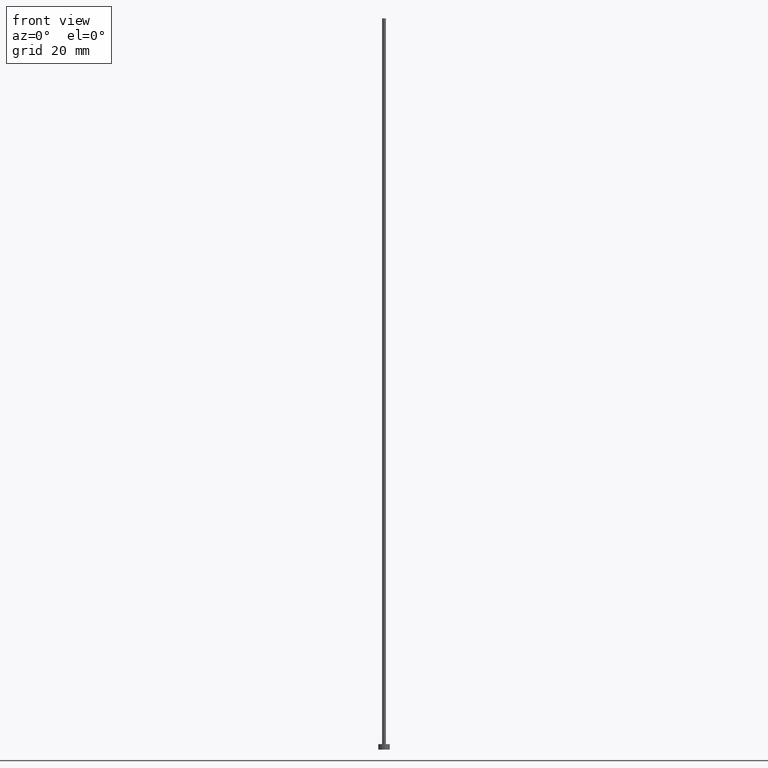
[diagram: clean part render]
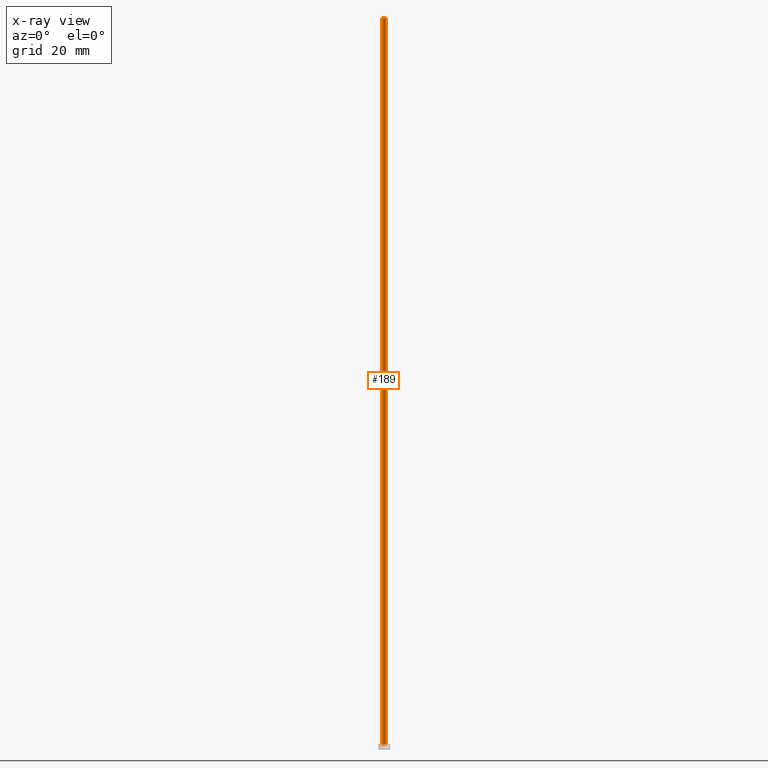
[diagram: x-ray — body ghosted, one internal face saturated and labeled with its STEP entity id]
A machine part, front view, then the same camera in x-ray: the body is ghosted and one INTERNAL B-rep face — a face not visible from any outside direction — is saturated and labeled: STEP entity #189.
In plain terms, the highlighted cylindrical surface (edge-blend (fillet) strip) has radius 0.4 mm, axis along (-0, -0, -1).
Its self-contained STEP definition (entity closure, byte-faithful):
#9 = VERTEX_POINT ( 'NONE', #155 ) ;
#21 = DIRECTION ( 'NONE',  ( 1.000000000000000000, 0.000000000000000000, 0.000000000000000000 ) ) ;
#23 = FACE_OUTER_BOUND ( 'NONE', #239, .T. ) ;
#24 = DIRECTION ( 'NONE',  ( -0.000000000000000000, -0.000000000000000000, -1.000000000000000000 ) ) ;
#39 = DIRECTION ( 'NONE',  ( 0.000000000000000000, 0.000000000000000000, 1.000000000000000000 ) ) ;
#40 = ORIENTED_EDGE ( 'NONE', *, *, #142, .T. ) ;
#51 = VECTOR ( 'NONE', #61, 1000.000000000000000 ) ;
#52 = VERTEX_POINT ( 'NONE', #244 ) ;
#54 = CARTESIAN_POINT ( 'NONE',  ( 0.4000000000000000222, 4.898587196589413075E-17, 160.0000000000000284 ) ) ;
#55 = DIRECTION ( 'NONE',  ( -1.000000000000000000, 0.000000000000000000, 0.000000000000000000 ) ) ;
#61 = DIRECTION ( 'NONE',  ( -0.000000000000000000, -0.000000000000000000, -1.000000000000000000 ) ) ;
#75 = AXIS2_PLACEMENT_3D ( 'NONE', #187, #105, #106 ) ;
#78 = CYLINDRICAL_SURFACE ( 'NONE', #209, 0.4000000000000000222 ) ;
#80 = VECTOR ( 'NONE', #191, 1000.000000000000000 ) ;
#85 = LINE ( 'NONE', #195, #80 ) ;
#94 = CARTESIAN_POINT ( 'NONE',  ( 0.4000000000000000222, 4.898587196589413075E-17, 160.0000000000000284 ) ) ;
#105 = DIRECTION ( 'NONE',  ( 0.000000000000000000, 0.000000000000000000, 1.000000000000000000 ) ) ;
#106 = DIRECTION ( 'NONE',  ( 1.000000000000000000, 0.000000000000000000, 0.000000000000000000 ) ) ;
#111 = VERTEX_POINT ( 'NONE', #94 ) ;
#115 = CARTESIAN_POINT ( 'NONE',  ( 0.000000000000000000, 0.000000000000000000, 160.0000000000000284 ) ) ;
#117 = AXIS2_PLACEMENT_3D ( 'NONE', #115, #39, #21 ) ;
#125 = CARTESIAN_POINT ( 'NONE',  ( 0.4000000000000000222, 4.898587196589413075E-17, 1.199999999999999956 ) ) ;
#142 = EDGE_CURVE ( 'NONE', #111, #203, #164, .T. ) ;
#154 = CIRCLE ( 'NONE', #75, 0.4000000000000000222 ) ;
#155 = CARTESIAN_POINT ( 'NONE',  ( -0.4000000000000000222, 0.000000000000000000, 1.199999999999999956 ) ) ;
#157 = ORIENTED_EDGE ( 'NONE', *, *, #232, .T. ) ;
#164 = LINE ( 'NONE', #54, #51 ) ;
#173 = EDGE_CURVE ( 'NONE', #111, #52, #237, .T. ) ;
#187 = CARTESIAN_POINT ( 'NONE',  ( 0.000000000000000000, 0.000000000000000000, 1.199999999999999956 ) ) ;
#189 = ADVANCED_FACE ( 'NONE', ( #23 ), #78, .T. ) ;
#191 = DIRECTION ( 'NONE',  ( -0.000000000000000000, -0.000000000000000000, -1.000000000000000000 ) ) ;
#195 = CARTESIAN_POINT ( 'NONE',  ( -0.4000000000000000222, 0.000000000000000000, 160.0000000000000284 ) ) ;
#203 = VERTEX_POINT ( 'NONE', #125 ) ;
#209 = AXIS2_PLACEMENT_3D ( 'NONE', #245, #24, #55 ) ;
#220 = ORIENTED_EDGE ( 'NONE', *, *, #173, .F. ) ;
#222 = ORIENTED_EDGE ( 'NONE', *, *, #238, .F. ) ;
#232 = EDGE_CURVE ( 'NONE', #203, #9, #154, .T. ) ;
#237 = CIRCLE ( 'NONE', #117, 0.4000000000000000222 ) ;
#238 = EDGE_CURVE ( 'NONE', #52, #9, #85, .T. ) ;
#239 = EDGE_LOOP ( 'NONE', ( #220, #40, #157, #222 ) ) ;
#244 = CARTESIAN_POINT ( 'NONE',  ( -0.4000000000000000222, 0.000000000000000000, 160.0000000000000284 ) ) ;
#245 = CARTESIAN_POINT ( 'NONE',  ( 0.000000000000000000, 0.000000000000000000, 160.0000000000000284 ) ) ;